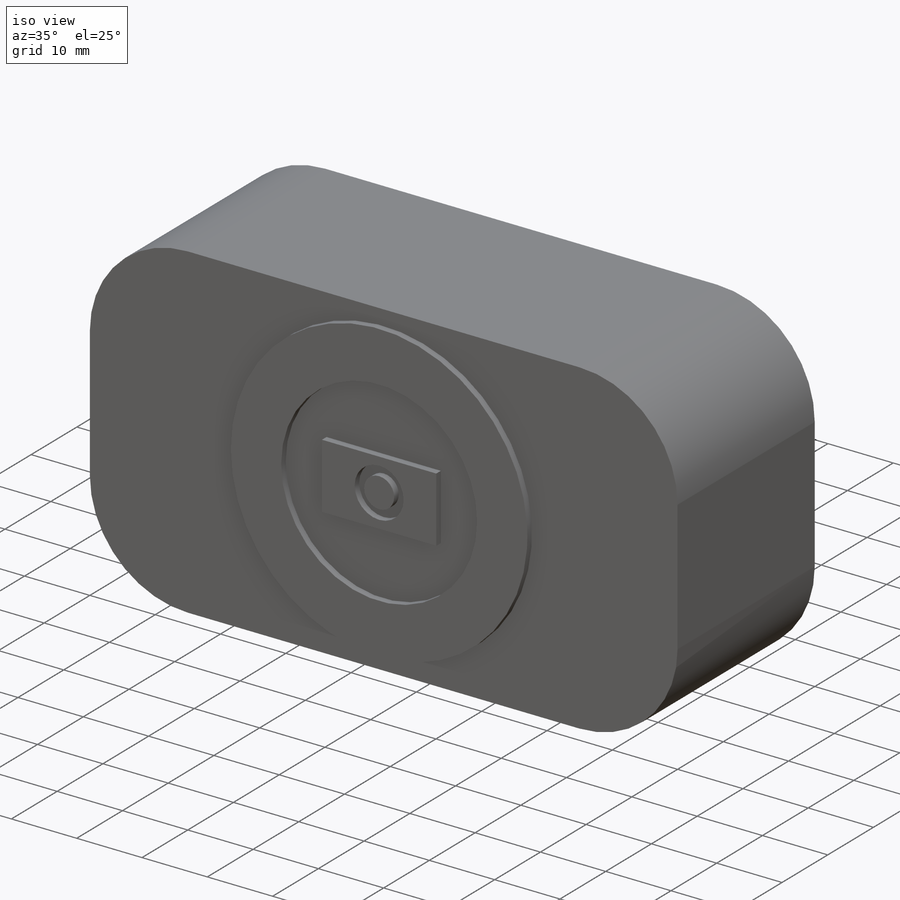
[diagram: iso view]
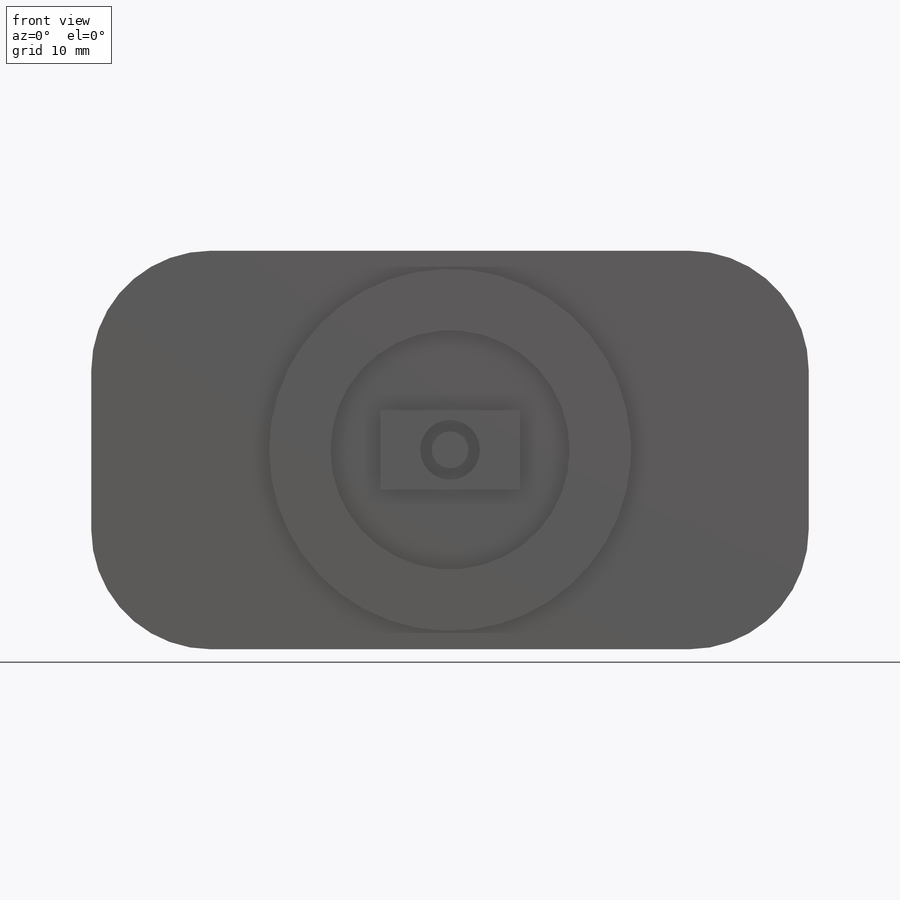
[diagram: front view]
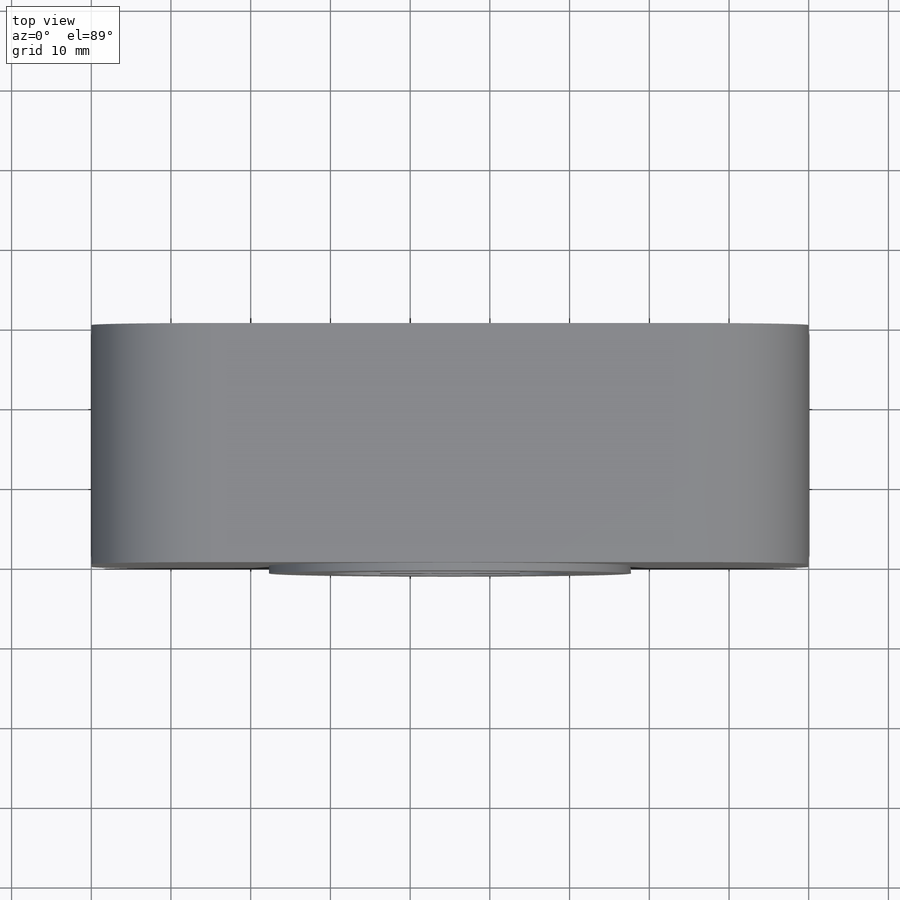
[diagram: top view]
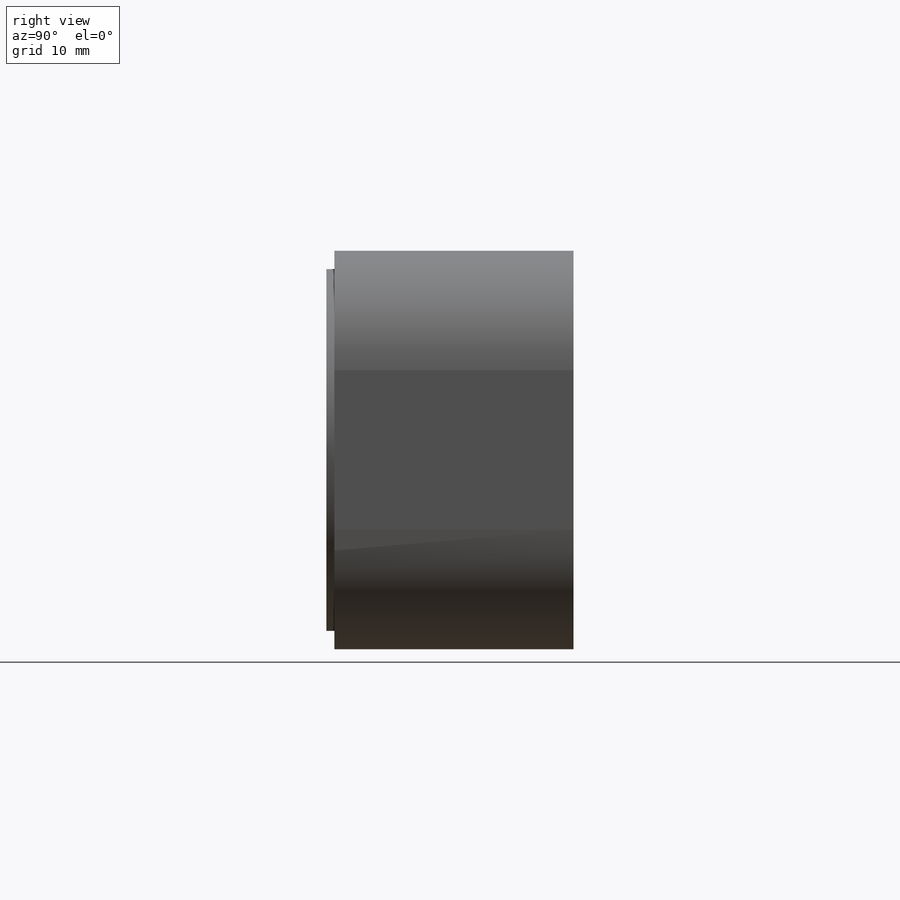
[diagram: right view]
SOLIDWORKS PART (.sldprt)
format: sldprt  version: not decoded by parser v0  size: 216,576 bytes
history: native  units: mm
features: sketch x6, extrude x4, cut_extrude x2, material x1, fillet x1 (+12 scaffold rows collapsed)
feature tree (26):
  scaffold x12  (default folders/planes/origin — collapsed)
  material  "Material <not specified>"
  sketch  "Sketch1"  dims[c1.D1=~62.467126mm c1.D2=~103.35252mm c2.D1=90.0mm c2.D2=50.0mm]
  extrude  "Boss-Extrude1"  Depth=30mm
  fillet  "Fillet1"  Radius=15mm
  sketch  "Sketch2"  dims[D1=10.0mm]
  extrude  "Boss-Extrude2"  Depth=1mm
  sketch  "Sketch3"  dims[D1=30.0mm D2=~45.406877mm]
  cut_extrude  "Cut-Extrude1"  Depth=1mm
  sketch  "Sketch4"  dims[c1.D1=~11.933077mm c1.D2=~16.407981mm c2.D1=17.5mm c2.D2=10.0mm c2.D3=20.0mm c2.D4=36.25mm c2.D5=10.0mm]
  extrude  "Boss-Extrude3"  Depth=1mm
  sketch  "Sketch5"  dims[D1=7.5mm]
  cut_extrude  "Cut-Extrude2"  Depth=1mm
  sketch  "Sketch6"  dims[D1=~4.606661mm]
  extrude  "Boss-Extrude4"  Depth=1mm
decode coverage: 13 of 13 modeling features carry decoded parameters
note: ~ marks probable driven/reference dimensions
note: suppression state not decoded; provenance and decode notes live in map.json
